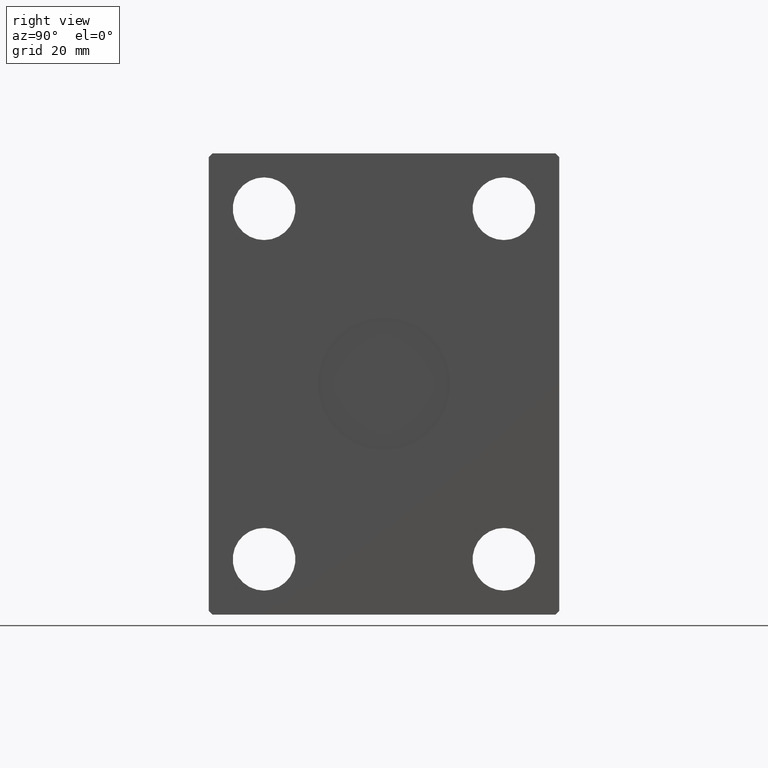
[diagram: clean part render]
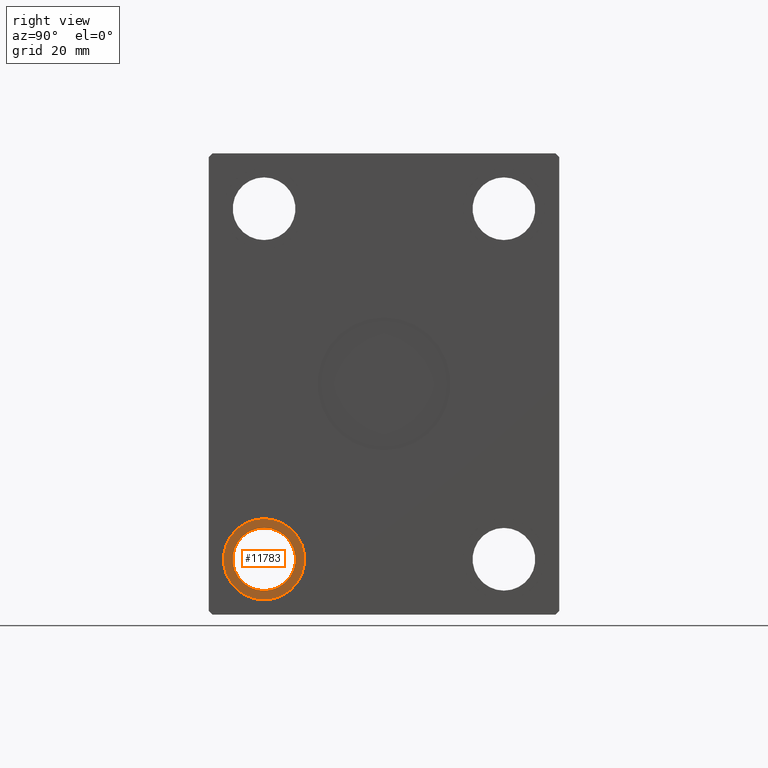
[diagram: same view with one face highlighted and labeled with its STEP entity id]
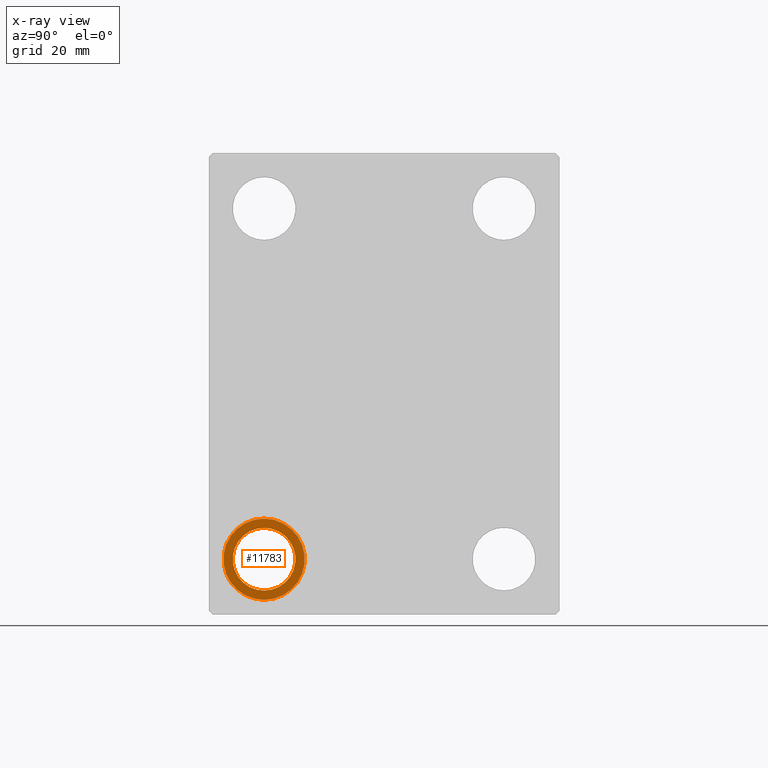
[diagram: x-ray of the same camera — body ghosted, the highlighted face saturated]
A machine part, right view. The second image highlights one B-rep face of the part: STEP entity #11783.
The next image is the same camera in x-ray: the body ghosted, the highlighted face saturated — about 0% of this face is hidden behind the body in this view.
In plain terms, the highlighted planar face has unit normal (-1, 0, 0).
Its self-contained STEP definition (entity closure, byte-faithful):
#1122 = DIRECTION ( 'NONE',  ( 0.000000000000000000, 0.000000000000000000, 1.000000000000000000 ) ) ;
#4977 = ORIENTED_EDGE ( 'NONE', *, *, #37438, .T. ) ;
#5780 = ORIENTED_EDGE ( 'NONE', *, *, #41240, .T. ) ;
#6268 = CARTESIAN_POINT ( 'NONE',  ( 110.6699999999999875, -32.50000000000000000, -58.50000000000000000 ) ) ;
#6539 = DIRECTION ( 'NONE',  ( 0.000000000000000000, 0.000000000000000000, -1.000000000000000000 ) ) ;
#8681 = AXIS2_PLACEMENT_3D ( 'NONE', #31113, #33898, #37773 ) ;
#10385 = CARTESIAN_POINT ( 'NONE',  ( 110.6699999999999875, -32.50000000000000000, -47.50000000000000000 ) ) ;
#10499 = CARTESIAN_POINT ( 'NONE',  ( 110.6699999999999875, -32.50000000000000000, -55.99999999999999289 ) ) ;
#11198 = EDGE_CURVE ( 'NONE', #37876, #11319, #28508, .T. ) ;
#11319 = VERTEX_POINT ( 'NONE', #6268 ) ;
#11569 = FACE_OUTER_BOUND ( 'NONE', #32509, .T. ) ;
#11783 = ADVANCED_FACE ( 'NONE', ( #24465, #11569 ), #27903, .F. ) ;
#14680 = DIRECTION ( 'NONE',  ( 1.000000000000000000, -0.000000000000000000, -0.000000000000000000 ) ) ;
#15421 = CIRCLE ( 'NONE', #36710, 10.99999999999999645 ) ;
#15471 = AXIS2_PLACEMENT_3D ( 'NONE', #24131, #14680, #37246 ) ;
#16847 = DIRECTION ( 'NONE',  ( 1.000000000000000000, -0.000000000000000000, -0.000000000000000000 ) ) ;
#20577 = ORIENTED_EDGE ( 'NONE', *, *, #11198, .T. ) ;
#21136 = AXIS2_PLACEMENT_3D ( 'NONE', #33751, #30765, #1122 ) ;
#23095 = CIRCLE ( 'NONE', #8681, 8.499999999999992895 ) ;
#24131 = CARTESIAN_POINT ( 'NONE',  ( 110.6699999999999875, -32.50000000000000000, -47.50000000000000000 ) ) ;
#24465 = FACE_BOUND ( 'NONE', #40030, .T. ) ;
#24674 = DIRECTION ( 'NONE',  ( -1.000000000000000000, 0.000000000000000000, 0.000000000000000000 ) ) ;
#25237 = CIRCLE ( 'NONE', #21136, 8.499999999999992895 ) ;
#25774 = AXIS2_PLACEMENT_3D ( 'NONE', #41019, #24674, #37785 ) ;
#27903 = PLANE ( 'NONE',  #25774 ) ;
#28049 = CARTESIAN_POINT ( 'NONE',  ( 110.6699999999999875, -32.50000000000000000, -39.00000000000000711 ) ) ;
#28508 = CIRCLE ( 'NONE', #15471, 10.99999999999999645 ) ;
#30765 = DIRECTION ( 'NONE',  ( -1.000000000000000000, 0.000000000000000000, 0.000000000000000000 ) ) ;
#31113 = CARTESIAN_POINT ( 'NONE',  ( 110.6699999999999875, -32.50000000000000000, -47.50000000000000000 ) ) ;
#32105 = VERTEX_POINT ( 'NONE', #28049 ) ;
#32509 = EDGE_LOOP ( 'NONE', ( #34222, #20577 ) ) ;
#33243 = EDGE_CURVE ( 'NONE', #11319, #37876, #15421, .T. ) ;
#33751 = CARTESIAN_POINT ( 'NONE',  ( 110.6699999999999875, -32.50000000000000000, -47.50000000000000000 ) ) ;
#33898 = DIRECTION ( 'NONE',  ( -1.000000000000000000, 0.000000000000000000, 0.000000000000000000 ) ) ;
#34222 = ORIENTED_EDGE ( 'NONE', *, *, #33243, .T. ) ;
#36710 = AXIS2_PLACEMENT_3D ( 'NONE', #10385, #16847, #6539 ) ;
#37246 = DIRECTION ( 'NONE',  ( 0.000000000000000000, 0.000000000000000000, -1.000000000000000000 ) ) ;
#37438 = EDGE_CURVE ( 'NONE', #32105, #41621, #23095, .T. ) ;
#37773 = DIRECTION ( 'NONE',  ( 0.000000000000000000, 0.000000000000000000, 1.000000000000000000 ) ) ;
#37785 = DIRECTION ( 'NONE',  ( 0.000000000000000000, 0.000000000000000000, -1.000000000000000000 ) ) ;
#37876 = VERTEX_POINT ( 'NONE', #41067 ) ;
#40030 = EDGE_LOOP ( 'NONE', ( #4977, #5780 ) ) ;
#41019 = CARTESIAN_POINT ( 'NONE',  ( 110.6699999999999875, -32.50000000000000000, -47.50000000000000000 ) ) ;
#41067 = CARTESIAN_POINT ( 'NONE',  ( 110.6699999999999875, -32.50000000000000000, -36.50000000000000711 ) ) ;
#41240 = EDGE_CURVE ( 'NONE', #41621, #32105, #25237, .T. ) ;
#41621 = VERTEX_POINT ( 'NONE', #10499 ) ;